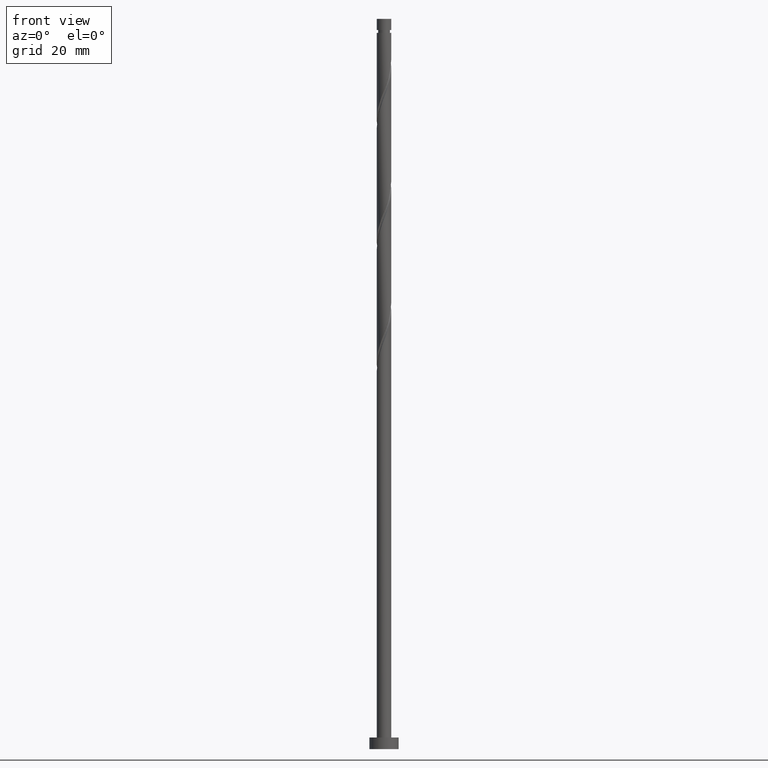
[diagram: clean part render]
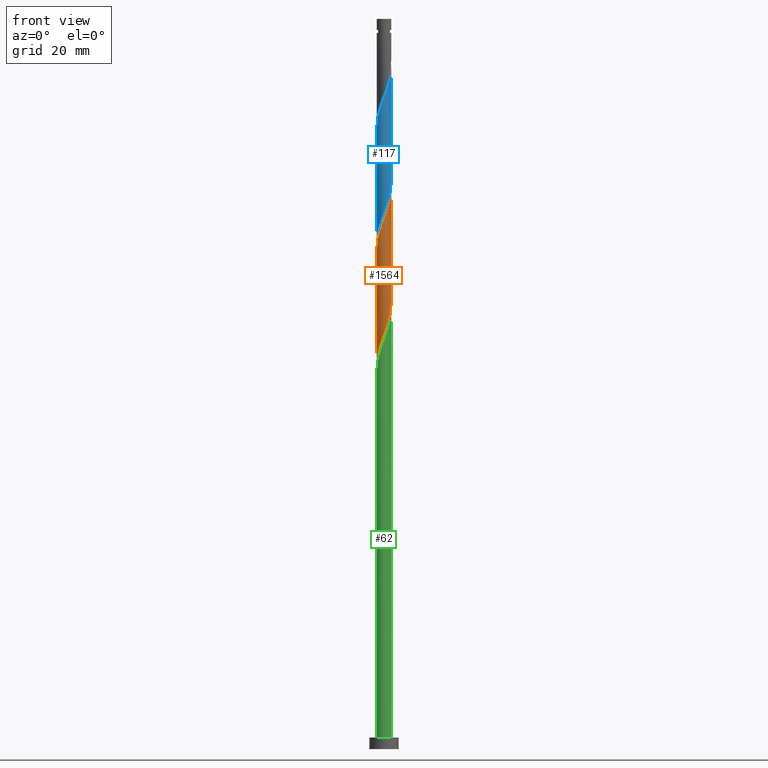
[diagram: same view with three faces highlighted in distinct colors, each labeled with its STEP entity id]
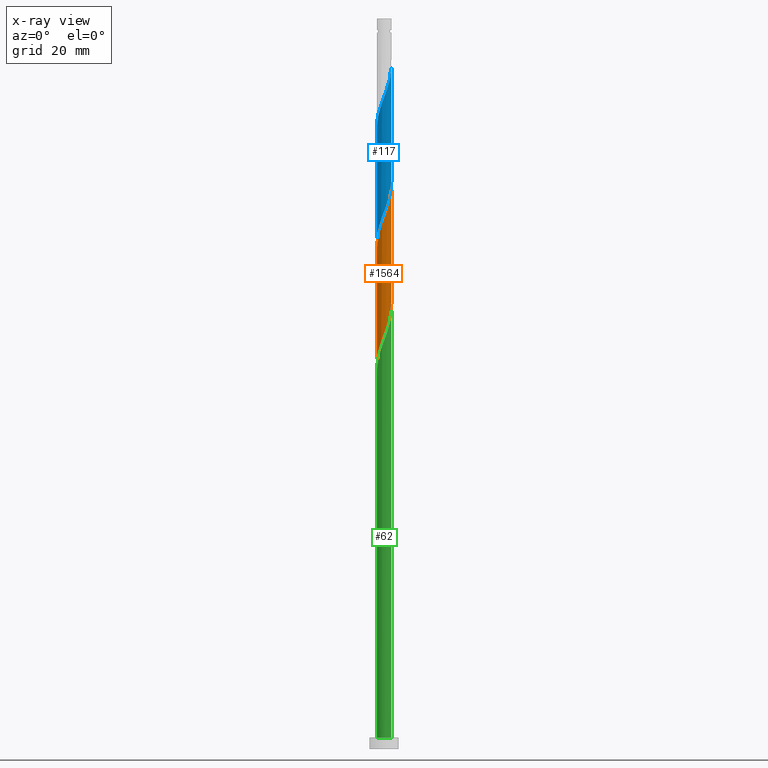
[diagram: x-ray of the same camera — body ghosted, the three highlighted faces saturated]
A machine part, front view with three faces highlighted in distinct colors.
The next image is the same camera in x-ray (body ghosted, the three faces saturated) — at least one of them is partly hidden behind the body in this view.
Their STEP definitions:

[orange] entity #1564 — the highlighted cylindrical surface (edge-blend (fillet) strip) has radius 1.25 mm, axis along (-0, -0, -1).
#21 = CARTESIAN_POINT ( 'NONE',  ( 0.9907520833843855845, -0.7874684803904423713, 74.16514045051420112 ) ) ;
#24 = CARTESIAN_POINT ( 'NONE',  ( -0.9907520833843873609, -0.7874684803904430375, 87.70680711718090095 ) ) ;
#32 = CARTESIAN_POINT ( 'NONE',  ( -0.6151181395323273016, -1.088177225647683377, 69.47764045051421533 ) ) ;
#34 = AXIS2_PLACEMENT_3D ( 'NONE', #792, #200, #926 ) ;
#88 = CARTESIAN_POINT ( 'NONE',  ( -1.055086260630532236, -0.6989200819604576287, 67.91514045051422954 ) ) ;
#119 = EDGE_CURVE ( 'NONE', #567, #767, #739, .T. ) ;
#140 = CARTESIAN_POINT ( 'NONE',  ( -1.250000000000001776, 2.084041286865579920E-15, 85.47950467571061495 ) ) ;
#147 = CARTESIAN_POINT ( 'NONE',  ( 1.088177225647683377, -0.6151181395323273016, 74.68597378384757235 ) ) ;
#161 = CARTESIAN_POINT ( 'NONE',  ( -1.225000000000001199, -0.2487468592766554076, 86.14430711718087252 ) ) ;
#165 = CARTESIAN_POINT ( 'NONE',  ( 1.224999999999999867, -0.2487468592766555187, 75.72764045051420112 ) ) ;
#188 = EDGE_CURVE ( 'NONE', #767, #471, #465, .T. ) ;
#200 = DIRECTION ( 'NONE',  ( -0.000000000000000000, -0.000000000000000000, -1.000000000000000000 ) ) ;
#219 = CARTESIAN_POINT ( 'NONE',  ( 1.250000000000000222, 1.619255100586214670E-15, 76.39244289198450133 ) ) ;
#243 = CARTESIAN_POINT ( 'NONE',  ( 0.7874684803904429264, -0.9907520833843873609, 92.91514045051424375 ) ) ;
#262 = CARTESIAN_POINT ( 'NONE',  ( -1.250000000000001554, -0.1256297269074015677, 85.81380925111847091 ) ) ;
#269 = CARTESIAN_POINT ( 'NONE',  ( 1.185602367910980837, -0.4427677986742125094, 75.20680711718088673 ) ) ;
#272 = VERTEX_POINT ( 'NONE', #703 ) ;
#275 = CARTESIAN_POINT ( 'NONE',  ( 1.250000000000001998, -0.07121717180804063019, 95.70666025316999992 ) ) ;
#327 = CYLINDRICAL_SURFACE ( 'NONE', #34, 1.250000000000000000 ) ;
#358 = CARTESIAN_POINT ( 'NONE',  ( -1.250000000000000000, 0.000000000000000000, 125.0000000000000000 ) ) ;
#366 = CARTESIAN_POINT ( 'NONE',  ( -1.088177225647684931, -0.6151181395323278567, 87.18597378384755814 ) ) ;
#371 = CARTESIAN_POINT ( 'NONE',  ( -1.249999999999999778, -0.07121717180804702785, 66.16528731452511636 ) ) ;
#401 = CARTESIAN_POINT ( 'NONE',  ( 0.1419734966862938597, -1.241911239275443446, 71.56097378384755814 ) ) ;
#406 = CARTESIAN_POINT ( 'NONE',  ( 1.219424846461868661, -0.3386729132516872465, 94.99847378384754393 ) ) ;
#412 = CARTESIAN_POINT ( 'NONE',  ( 0.5187964976060718270, -1.137255553546199893, 72.60264045051418691 ) ) ;
#461 = ORIENTED_EDGE ( 'NONE', *, *, #1146, .F. ) ;
#465 =( BOUNDED_CURVE ( )  B_SPLINE_CURVE ( 2, ( #519, #1346, #165, #269, #147, #21, #992, #1481, #412, #643, #401, #870, #1356, #1118, #32, #1494, #1127, #88, #578, #1068, #1431, #371, #836 ),
 .UNSPECIFIED., .F., .T. ) 
 B_SPLINE_CURVE_WITH_KNOTS ( ( 3, 2, 2, 2, 2, 2, 2, 2, 2, 2, 2, 3 ),
 ( 0.8045322023138550271, 0.8125000000000000000, 0.8249999999999999556, 0.8375000000000000222, 0.8499999999999999778, 0.8625000000000000444, 0.8750000000000000000, 0.8874999999999999556, 0.9000000000000000222, 0.9124999999999999778, 0.9250000000000000444, 0.9295322023138548051 ),
 .UNSPECIFIED. ) 
 CURVE ( )  GEOMETRIC_REPRESENTATION_ITEM ( )  RATIONAL_B_SPLINE_CURVE ( ( 0.9039174447099418419, 0.9019565955404710289, 0.9090909090909196077, 0.8978984914501357828, 0.9090909090909196077, 0.8978984914501357828, 0.9090909090909196077, 0.8978984914501357828, 0.9090909090909196077, 0.8978984914501357828, 0.9090909090909196077, 0.8978984914501357828, 0.9090909090909196077, 0.8978984914501357828, 0.9090909090909196077, 0.8978984914501357828, 0.9090909090909196077, 0.8978984914501357828, 0.9090909090909196077, 0.8978984914501357828, 0.9090909090909196077, 0.9050328050005844727, 0.9039174447099421750 ) ) 
 REPRESENTATION_ITEM ( '' )  );
#471 = VERTEX_POINT ( 'NONE', #874 ) ;
#519 = CARTESIAN_POINT ( 'NONE',  ( 1.250000000000000222, 1.619255100586214670E-15, 76.39244289198450133 ) ) ;
#523 = CARTESIAN_POINT ( 'NONE',  ( 0.05472591987909804223, -1.264397632089020673, 90.83180711718090095 ) ) ;
#567 = VERTEX_POINT ( 'NONE', #1299 ) ;
#578 = CARTESIAN_POINT ( 'NONE',  ( -1.137255553546199893, -0.5187964976060718270, 67.39430711718088673 ) ) ;
#595 = DIRECTION ( 'NONE',  ( -0.000000000000000000, -0.000000000000000000, -1.000000000000000000 ) ) ;
#628 = CARTESIAN_POINT ( 'NONE',  ( 1.055086260630533568, -0.6989200819604589610, 93.95680711718090095 ) ) ;
#643 = CARTESIAN_POINT ( 'NONE',  ( 0.3386729132516862473, -1.219424846461867107, 72.08180711718090095 ) ) ;
#703 = CARTESIAN_POINT ( 'NONE',  ( -1.250000000000001776, 2.084041286865579525E-15, 85.47950467571061495 ) ) ;
#722 = CARTESIAN_POINT ( 'NONE',  ( -0.8448360826724227168, -0.9212773705104880806, 88.22764045051421533 ) ) ;
#723 = DIRECTION ( 'NONE',  ( -0.000000000000000000, -0.000000000000000000, -1.000000000000000000 ) ) ;
#732 = CARTESIAN_POINT ( 'NONE',  ( -0.3386729132516869689, -1.219424846461868661, 89.79014045051427217 ) ) ;
#739 = LINE ( 'NONE', #924, #840 ) ;
#747 = EDGE_CURVE ( 'NONE', #272, #471, #1469, .T. ) ;
#767 = VERTEX_POINT ( 'NONE', #219 ) ;
#792 = CARTESIAN_POINT ( 'NONE',  ( 0.000000000000000000, 0.000000000000000000, 125.0000000000000000 ) ) ;
#831 = CARTESIAN_POINT ( 'NONE',  ( 1.137255553546200781, -0.5187964976060727151, 94.47764045051420112 ) ) ;
#836 = CARTESIAN_POINT ( 'NONE',  ( -1.250000000000000888, -8.755972025392124411E-15, 65.97577622531785835 ) ) ;
#838 = CARTESIAN_POINT ( 'NONE',  ( -0.5187964976060727151, -1.137255553546200781, 89.26930711718091516 ) ) ;
#840 = VECTOR ( 'NONE', #595, 1000.000000000000000 ) ;
#870 = CARTESIAN_POINT ( 'NONE',  ( -0.05472591987909851408, -1.264397632089019563, 71.04014045051420112 ) ) ;
#874 = CARTESIAN_POINT ( 'NONE',  ( -1.250000000000000666, -8.755972025392122833E-15, 65.97577622531785835 ) ) ;
#901 = ORIENTED_EDGE ( 'NONE', *, *, #188, .F. ) ;
#919 = FACE_OUTER_BOUND ( 'NONE', #1336, .T. ) ;
#924 = CARTESIAN_POINT ( 'NONE',  ( 1.250000000000000000, 1.530808498934191571E-16, 125.0000000000000000 ) ) ;
#926 = DIRECTION ( 'NONE',  ( -1.000000000000000000, 0.000000000000000000, 0.000000000000000000 ) ) ;
#992 = CARTESIAN_POINT ( 'NONE',  ( 0.8448360826724214956, -0.9212773705104876365, 73.64430711718091516 ) ) ;
#997 = CARTESIAN_POINT ( 'NONE',  ( 0.2487468592766552966, -1.225000000000001199, 91.35264045051421533 ) ) ;
#1068 = CARTESIAN_POINT ( 'NONE',  ( -1.219424846461867107, -0.3386729132516863583, 66.87347378384755814 ) ) ;
#1104 = CARTESIAN_POINT ( 'NONE',  ( -0.1419734966862944425, -1.241911239275444556, 90.31097378384754393 ) ) ;
#1118 = CARTESIAN_POINT ( 'NONE',  ( -0.4427677986742124538, -1.185602367910980837, 69.99847378384754393 ) ) ;
#1127 = CARTESIAN_POINT ( 'NONE',  ( -0.9212773705104876365, -0.8448360826724214956, 68.43597378384754393 ) ) ;
#1146 = EDGE_CURVE ( 'NONE', #272, #567, #1159, .T. ) ;
#1159 =( BOUNDED_CURVE ( )  B_SPLINE_CURVE ( 2, ( #140, #262, #161, #1451, #366, #24, #722, #1351, #838, #732, #1104, #523, #997, #1340, #1325, #243, #1488, #628, #831, #406, #1226, #275, #1333 ),
 .UNSPECIFIED., .F., .T. ) 
 B_SPLINE_CURVE_WITH_KNOTS ( ( 3, 2, 2, 2, 2, 2, 2, 2, 2, 2, 2, 3 ),
 ( 0.3045322023138551937, 0.3125000000000000000, 0.3249999999999999556, 0.3375000000000000222, 0.3499999999999999778, 0.3625000000000000444, 0.3750000000000000000, 0.3874999999999999556, 0.4000000000000000222, 0.4124999999999999778, 0.4250000000000000444, 0.4295322023138552492 ),
 .UNSPECIFIED. ) 
 CURVE ( )  GEOMETRIC_REPRESENTATION_ITEM ( )  RATIONAL_B_SPLINE_CURVE ( ( 0.9039174447099469489, 0.9019565955404761359, 0.9090909090909247148, 0.8978984914501405568, 0.9090909090909247148, 0.8978984914501405568, 0.9090909090909247148, 0.8978984914501405568, 0.9090909090909247148, 0.8978984914501405568, 0.9090909090909247148, 0.8978984914501405568, 0.9090909090909247148, 0.8978984914501405568, 0.9090909090909247148, 0.8978984914501405568, 0.9090909090909247148, 0.8978984914501405568, 0.9090909090909247148, 0.8978984914501405568, 0.9090909090909247148, 0.9050328050005889136, 0.9039174447099467269 ) ) 
 REPRESENTATION_ITEM ( '' )  );
#1226 = CARTESIAN_POINT ( 'NONE',  ( 1.241911239275444556, -0.1419734966862945258, 95.51930711718087252 ) ) ;
#1299 = CARTESIAN_POINT ( 'NONE',  ( 1.250000000000001776, 1.259420633789271218E-15, 95.89617134237728635 ) ) ;
#1325 = CARTESIAN_POINT ( 'NONE',  ( 0.6151181395323277457, -1.088177225647684931, 92.39430711718087252 ) ) ;
#1327 = ORIENTED_EDGE ( 'NONE', *, *, #119, .F. ) ;
#1333 = CARTESIAN_POINT ( 'NONE',  ( 1.250000000000001776, 1.259420633789271218E-15, 95.89617134237728635 ) ) ;
#1336 = EDGE_LOOP ( 'NONE', ( #1327, #461, #1338, #901 ) ) ;
#1338 = ORIENTED_EDGE ( 'NONE', *, *, #747, .T. ) ;
#1340 = CARTESIAN_POINT ( 'NONE',  ( 0.4427677986742125649, -1.185602367910982613, 91.87347378384754393 ) ) ;
#1346 = CARTESIAN_POINT ( 'NONE',  ( 1.250000000000000666, -0.1256297269073992640, 76.05813831657663115 ) ) ;
#1351 = CARTESIAN_POINT ( 'NONE',  ( -0.6989200819604587389, -1.055086260630533568, 88.74847378384755814 ) ) ;
#1356 = CARTESIAN_POINT ( 'NONE',  ( -0.2487468592766554631, -1.224999999999999867, 70.51930711718090095 ) ) ;
#1431 = CARTESIAN_POINT ( 'NONE',  ( -1.241911239275443446, -0.1419734966862939429, 66.35264045051422954 ) ) ;
#1451 = CARTESIAN_POINT ( 'NONE',  ( -1.185602367910982613, -0.4427677986742126759, 86.66514045051422954 ) ) ;
#1469 = LINE ( 'NONE', #358, #1529 ) ;
#1481 = CARTESIAN_POINT ( 'NONE',  ( 0.6989200819604576287, -1.055086260630532458, 73.12347378384754393 ) ) ;
#1488 = CARTESIAN_POINT ( 'NONE',  ( 0.9212773705104880806, -0.8448360826724227168, 93.43597378384752972 ) ) ;
#1494 = CARTESIAN_POINT ( 'NONE',  ( -0.7874684803904422603, -0.9907520833843855845, 68.95680711718090095 ) ) ;
#1529 = VECTOR ( 'NONE', #723, 1000.000000000000000 ) ;
#1564 = ADVANCED_FACE ( 'NONE', ( #919 ), #327, .T. ) ;

[blue] entity #117 — the highlighted cylindrical surface (edge-blend (fillet) strip) has radius 1.25 mm, axis along (-0, -0, -1).
#5 = CARTESIAN_POINT ( 'NONE',  ( 1.241911239275444556, -0.1419734966862945258, 116.3526404505142011 ) ) ;
#25 = LINE ( 'NONE', #1238, #779 ) ;
#29 = EDGE_CURVE ( 'NONE', #720, #124, #25, .T. ) ;
#38 = CARTESIAN_POINT ( 'NONE',  ( -0.8448360826724227168, -0.9212773705104880806, 109.0609737838475297 ) ) ;
#44 = EDGE_CURVE ( 'NONE', #720, #1492, #1007, .T. ) ;
#46 = CARTESIAN_POINT ( 'NONE',  ( 0.8448360826724214956, -0.9212773705104876365, 94.47764045051422954 ) ) ;
#52 = CARTESIAN_POINT ( 'NONE',  ( -1.137255553546199893, -0.5187964976060718270, 88.22764045051422954 ) ) ;
#97 = CARTESIAN_POINT ( 'NONE',  ( 1.250000000000000000, 1.530808498934191571E-16, 125.0000000000000000 ) ) ;
#117 = ADVANCED_FACE ( 'NONE', ( #729 ), #530, .T. ) ;
#122 = CARTESIAN_POINT ( 'NONE',  ( 1.137255553546200781, -0.5187964976060727151, 115.3109737838475581 ) ) ;
#124 = VERTEX_POINT ( 'NONE', #931 ) ;
#153 = DIRECTION ( 'NONE',  ( -0.000000000000000000, -0.000000000000000000, -1.000000000000000000 ) ) ;
#162 = CARTESIAN_POINT ( 'NONE',  ( -0.9907520833843873609, -0.7874684803904430375, 108.5401404505142153 ) ) ;
#195 = CARTESIAN_POINT ( 'NONE',  ( -1.055086260630532236, -0.6989200819604576287, 88.74847378384754393 ) ) ;
#217 = ORIENTED_EDGE ( 'NONE', *, *, #687, .F. ) ;
#270 = DIRECTION ( 'NONE',  ( -1.000000000000000000, 0.000000000000000000, 0.000000000000000000 ) ) ;
#292 = ORIENTED_EDGE ( 'NONE', *, *, #44, .F. ) ;
#296 = CARTESIAN_POINT ( 'NONE',  ( 0.6989200819604576287, -1.055086260630532458, 93.95680711718088673 ) ) ;
#378 = CARTESIAN_POINT ( 'NONE',  ( 1.250000000000001110, 6.222137655030327558E-16, 116.7295046757106149 ) ) ;
#421 = CARTESIAN_POINT ( 'NONE',  ( 0.9212773705104880806, -0.8448360826724227168, 114.2693071171808583 ) ) ;
#423 = CARTESIAN_POINT ( 'NONE',  ( -0.6151181395323273016, -1.088177225647683377, 90.31097378384754393 ) ) ;
#436 = CARTESIAN_POINT ( 'NONE',  ( -0.05472591987909851408, -1.264397632089019563, 91.87347378384752972 ) ) ;
#524 = CARTESIAN_POINT ( 'NONE',  ( -1.185602367910982613, -0.4427677986742126759, 107.4984737838475581 ) ) ;
#530 = CYLINDRICAL_SURFACE ( 'NONE', #1133, 1.250000000000000000 ) ;
#545 = CARTESIAN_POINT ( 'NONE',  ( 0.5187964976060718270, -1.137255553546199893, 93.43597378384755814 ) ) ;
#602 = CARTESIAN_POINT ( 'NONE',  ( -0.3386729132516869689, -1.219424846461868661, 110.6234737838475581 ) ) ;
#608 =( BOUNDED_CURVE ( )  B_SPLINE_CURVE ( 2, ( #959, #969, #1461, #1522, #1279, #654, #46, #296, #545, #1138, #1029, #436, #1021, #1505, #423, #763, #905, #195, #52, #1511, #1269, #892, #665 ),
 .UNSPECIFIED., .F., .T. ) 
 B_SPLINE_CURVE_WITH_KNOTS ( ( 3, 2, 2, 2, 2, 2, 2, 2, 2, 2, 2, 3 ),
 ( 0.5545322023138550271, 0.5625000000000000000, 0.5749999999999999556, 0.5875000000000000222, 0.5999999999999999778, 0.6125000000000000444, 0.6250000000000000000, 0.6374999999999999556, 0.6500000000000000222, 0.6624999999999999778, 0.6750000000000000444, 0.6795322023138549161 ),
 .UNSPECIFIED. ) 
 CURVE ( )  GEOMETRIC_REPRESENTATION_ITEM ( )  RATIONAL_B_SPLINE_CURVE ( ( 0.9039174447099418419, 0.9019565955404710289, 0.9090909090909196077, 0.8978984914501357828, 0.9090909090909196077, 0.8978984914501357828, 0.9090909090909196077, 0.8978984914501357828, 0.9090909090909196077, 0.8978984914501357828, 0.9090909090909196077, 0.8978984914501357828, 0.9090909090909196077, 0.8978984914501357828, 0.9090909090909196077, 0.8978984914501357828, 0.9090909090909196077, 0.8978984914501357828, 0.9090909090909196077, 0.8978984914501357828, 0.9090909090909196077, 0.9050328050005842506, 0.9039174447099419529 ) ) 
 REPRESENTATION_ITEM ( '' )  );
#654 = CARTESIAN_POINT ( 'NONE',  ( 0.9907520833843855845, -0.7874684803904423713, 94.99847378384755814 ) ) ;
#659 = CARTESIAN_POINT ( 'NONE',  ( 1.250000000000000222, 1.619255100586214670E-15, 97.22577622531781572 ) ) ;
#665 = CARTESIAN_POINT ( 'NONE',  ( -1.250000000000000666, -5.277572179688403776E-15, 86.80910955865117273 ) ) ;
#687 = EDGE_CURVE ( 'NONE', #1492, #1296, #1452, .T. ) ;
#718 = CARTESIAN_POINT ( 'NONE',  ( 0.6151181395323277457, -1.088177225647684931, 113.2276404505142011 ) ) ;
#720 = VERTEX_POINT ( 'NONE', #822 ) ;
#729 = FACE_OUTER_BOUND ( 'NONE', #941, .T. ) ;
#751 = CARTESIAN_POINT ( 'NONE',  ( -1.225000000000001199, -0.2487468592766554076, 106.9776404505142011 ) ) ;
#763 = CARTESIAN_POINT ( 'NONE',  ( -0.7874684803904422603, -0.9907520833843855845, 89.79014045051424375 ) ) ;
#779 = VECTOR ( 'NONE', #153, 1000.000000000000000 ) ;
#817 = CARTESIAN_POINT ( 'NONE',  ( 1.250000000000001332, 6.222137655030326572E-16, 116.7295046757106292 ) ) ;
#822 = CARTESIAN_POINT ( 'NONE',  ( -1.250000000000001776, 9.745516809083643814E-16, 106.3128380090439293 ) ) ;
#835 = ORIENTED_EDGE ( 'NONE', *, *, #1242, .F. ) ;
#858 = CARTESIAN_POINT ( 'NONE',  ( 0.000000000000000000, 0.000000000000000000, 125.0000000000000000 ) ) ;
#877 = CARTESIAN_POINT ( 'NONE',  ( -1.250000000000002220, -0.1256297269073989864, 106.6471425844517711 ) ) ;
#892 = CARTESIAN_POINT ( 'NONE',  ( -1.249999999999999778, -0.07121717180804529312, 86.99862064785843074 ) ) ;
#905 = CARTESIAN_POINT ( 'NONE',  ( -0.9212773705104876365, -0.8448360826724214956, 89.26930711718090095 ) ) ;
#931 = CARTESIAN_POINT ( 'NONE',  ( -1.250000000000000666, -5.277572179688403776E-15, 86.80910955865117273 ) ) ;
#941 = EDGE_LOOP ( 'NONE', ( #217, #292, #1223, #835 ) ) ;
#951 = DIRECTION ( 'NONE',  ( -0.000000000000000000, -0.000000000000000000, -1.000000000000000000 ) ) ;
#959 = CARTESIAN_POINT ( 'NONE',  ( 1.250000000000000222, 1.619255100586214670E-15, 97.22577622531781572 ) ) ;
#969 = CARTESIAN_POINT ( 'NONE',  ( 1.250000000000000666, -0.1256297269073992640, 96.89147164990997396 ) ) ;
#972 = CARTESIAN_POINT ( 'NONE',  ( 1.250000000000001998, -0.07121717180803886771, 116.5399935865033569 ) ) ;
#983 = CARTESIAN_POINT ( 'NONE',  ( 0.4427677986742125649, -1.185602367910982613, 112.7068071171809152 ) ) ;
#1007 =( BOUNDED_CURVE ( )  B_SPLINE_CURVE ( 2, ( #1475, #877, #751, #524, #1361, #162, #38, #1012, #1375, #602, #1092, #1503, #1246, #983, #718, #1111, #421, #1208, #122, #1483, #5, #972, #378 ),
 .UNSPECIFIED., .F., .T. ) 
 B_SPLINE_CURVE_WITH_KNOTS ( ( 3, 2, 2, 2, 2, 2, 2, 2, 2, 2, 2, 3 ),
 ( 0.5545322023138550271, 0.5625000000000000000, 0.5749999999999999556, 0.5875000000000000222, 0.5999999999999999778, 0.6125000000000000444, 0.6250000000000000000, 0.6374999999999999556, 0.6500000000000000222, 0.6624999999999999778, 0.6750000000000000444, 0.6795322023138553602 ),
 .UNSPECIFIED. ) 
 CURVE ( )  GEOMETRIC_REPRESENTATION_ITEM ( )  RATIONAL_B_SPLINE_CURVE ( ( 0.9039174447099469489, 0.9019565955404760249, 0.9090909090909247148, 0.8978984914501405568, 0.9090909090909247148, 0.8978984914501405568, 0.9090909090909247148, 0.8978984914501405568, 0.9090909090909247148, 0.8978984914501405568, 0.9090909090909247148, 0.8978984914501405568, 0.9090909090909247148, 0.8978984914501405568, 0.9090909090909247148, 0.8978984914501405568, 0.9090909090909247148, 0.8978984914501405568, 0.9090909090909247148, 0.8978984914501405568, 0.9090909090909247148, 0.9050328050005889136, 0.9039174447099467269 ) ) 
 REPRESENTATION_ITEM ( '' )  );
#1012 = CARTESIAN_POINT ( 'NONE',  ( -0.6989200819604587389, -1.055086260630533568, 109.5818071171808867 ) ) ;
#1021 = CARTESIAN_POINT ( 'NONE',  ( -0.2487468592766554631, -1.224999999999999867, 91.35264045051421533 ) ) ;
#1029 = CARTESIAN_POINT ( 'NONE',  ( 0.1419734966862938597, -1.241911239275443446, 92.39430711718087252 ) ) ;
#1092 = CARTESIAN_POINT ( 'NONE',  ( -0.1419734966862944425, -1.241911239275444556, 111.1443071171808725 ) ) ;
#1111 = CARTESIAN_POINT ( 'NONE',  ( 0.7874684803904429264, -0.9907520833843873609, 113.7484737838475866 ) ) ;
#1133 = AXIS2_PLACEMENT_3D ( 'NONE', #858, #1221, #270 ) ;
#1138 = CARTESIAN_POINT ( 'NONE',  ( 0.3386729132516862473, -1.219424846461867107, 92.91514045051421533 ) ) ;
#1169 = VECTOR ( 'NONE', #951, 1000.000000000000000 ) ;
#1208 = CARTESIAN_POINT ( 'NONE',  ( 1.055086260630533568, -0.6989200819604589610, 114.7901404505142153 ) ) ;
#1221 = DIRECTION ( 'NONE',  ( -0.000000000000000000, -0.000000000000000000, -1.000000000000000000 ) ) ;
#1223 = ORIENTED_EDGE ( 'NONE', *, *, #29, .T. ) ;
#1238 = CARTESIAN_POINT ( 'NONE',  ( -1.250000000000000000, 0.000000000000000000, 125.0000000000000000 ) ) ;
#1242 = EDGE_CURVE ( 'NONE', #1296, #124, #608, .T. ) ;
#1246 = CARTESIAN_POINT ( 'NONE',  ( 0.2487468592766552966, -1.225000000000001199, 112.1859737838475439 ) ) ;
#1269 = CARTESIAN_POINT ( 'NONE',  ( -1.241911239275443446, -0.1419734966862939429, 87.18597378384754393 ) ) ;
#1279 = CARTESIAN_POINT ( 'NONE',  ( 1.088177225647683377, -0.6151181395323273016, 95.51930711718088673 ) ) ;
#1296 = VERTEX_POINT ( 'NONE', #659 ) ;
#1361 = CARTESIAN_POINT ( 'NONE',  ( -1.088177225647684931, -0.6151181395323278567, 108.0193071171808725 ) ) ;
#1375 = CARTESIAN_POINT ( 'NONE',  ( -0.5187964976060727151, -1.137255553546200781, 110.1026404505141869 ) ) ;
#1452 = LINE ( 'NONE', #97, #1169 ) ;
#1461 = CARTESIAN_POINT ( 'NONE',  ( 1.224999999999999867, -0.2487468592766555187, 96.56097378384754393 ) ) ;
#1475 = CARTESIAN_POINT ( 'NONE',  ( -1.250000000000001776, 9.745516809083643814E-16, 106.3128380090439293 ) ) ;
#1483 = CARTESIAN_POINT ( 'NONE',  ( 1.219424846461868661, -0.3386729132516872465, 115.8318071171809009 ) ) ;
#1492 = VERTEX_POINT ( 'NONE', #817 ) ;
#1503 = CARTESIAN_POINT ( 'NONE',  ( 0.05472591987909804223, -1.264397632089020673, 111.6651404505142438 ) ) ;
#1505 = CARTESIAN_POINT ( 'NONE',  ( -0.4427677986742124538, -1.185602367910980837, 90.83180711718088673 ) ) ;
#1511 = CARTESIAN_POINT ( 'NONE',  ( -1.219424846461867107, -0.3386729132516863583, 87.70680711718088673 ) ) ;
#1522 = CARTESIAN_POINT ( 'NONE',  ( 1.185602367910980837, -0.4427677986742125094, 96.04014045051422954 ) ) ;

[green] entity #62 — the highlighted cylindrical surface (edge-blend (fillet) strip) has radius 1.25 mm, axis along (-0, -0, -1).
#3 = VECTOR ( 'NONE', #174, 1000.000000000000000 ) ;
#22 = CYLINDRICAL_SURFACE ( 'NONE', #98, 1.250000000000000000 ) ;
#37 = CARTESIAN_POINT ( 'NONE',  ( -1.250000000000000000, 0.000000000000000000, 125.0000000000000000 ) ) ;
#62 = ADVANCED_FACE ( 'NONE', ( #390 ), #22, .T. ) ;
#71 = CARTESIAN_POINT ( 'NONE',  ( 1.250000000000001776, 1.259420633789271218E-15, 75.06283800904398618 ) ) ;
#98 = AXIS2_PLACEMENT_3D ( 'NONE', #281, #634, #1119 ) ;
#132 = VECTOR ( 'NONE', #383, 1000.000000000000000 ) ;
#169 = CARTESIAN_POINT ( 'NONE',  ( -0.9907520833843873609, -0.7874684803904430375, 66.87347378384755814 ) ) ;
#174 = DIRECTION ( 'NONE',  ( -0.000000000000000000, -0.000000000000000000, -1.000000000000000000 ) ) ;
#179 = ORIENTED_EDGE ( 'NONE', *, *, #883, .F. ) ;
#223 = CARTESIAN_POINT ( 'NONE',  ( 0.4427677986742125649, -1.185602367910982613, 71.04014045051425796 ) ) ;
#281 = CARTESIAN_POINT ( 'NONE',  ( 0.000000000000000000, 0.000000000000000000, 125.0000000000000000 ) ) ;
#289 = DIRECTION ( 'NONE',  ( 1.000000000000000000, 0.000000000000000000, 0.000000000000000000 ) ) ;
#315 = CARTESIAN_POINT ( 'NONE',  ( -1.250000000000001776, -1.188953050708204892E-14, 64.64617134237732898 ) ) ;
#320 = CARTESIAN_POINT ( 'NONE',  ( -1.250000000000001776, -1.188953050708204892E-14, 64.64617134237732898 ) ) ;
#341 = AXIS2_PLACEMENT_3D ( 'NONE', #1392, #909, #289 ) ;
#383 = DIRECTION ( 'NONE',  ( -0.000000000000000000, -0.000000000000000000, -1.000000000000000000 ) ) ;
#390 = FACE_OUTER_BOUND ( 'NONE', #1567, .T. ) ;
#417 = CARTESIAN_POINT ( 'NONE',  ( -1.225000000000001199, -0.2487468592766554076, 65.31097378384754393 ) ) ;
#446 = CARTESIAN_POINT ( 'NONE',  ( 0.9212773705104880806, -0.8448360826724227168, 72.60264045051420112 ) ) ;
#457 = CARTESIAN_POINT ( 'NONE',  ( 0.7874684803904429264, -0.9907520833843873609, 72.08180711718090095 ) ) ;
#540 = CARTESIAN_POINT ( 'NONE',  ( -0.5187964976060727151, -1.137255553546200781, 68.43597378384755814 ) ) ;
#583 = CARTESIAN_POINT ( 'NONE',  ( 0.05472591987909804223, -1.264397632089020673, 69.99847378384752972 ) ) ;
#634 = DIRECTION ( 'NONE',  ( -0.000000000000000000, -0.000000000000000000, -1.000000000000000000 ) ) ;
#637 = LINE ( 'NONE', #37, #132 ) ;
#646 = CARTESIAN_POINT ( 'NONE',  ( -0.8448360826724227168, -0.9212773705104880806, 67.39430711718087252 ) ) ;
#680 = CARTESIAN_POINT ( 'NONE',  ( -0.3386729132516869689, -1.219424846461868661, 68.95680711718088673 ) ) ;
#696 = CARTESIAN_POINT ( 'NONE',  ( 1.137255553546200781, -0.5187964976060727151, 73.64430711718090095 ) ) ;
#754 = ORIENTED_EDGE ( 'NONE', *, *, #1335, .T. ) ;
#761 = LINE ( 'NONE', #1260, #3 ) ;
#780 = CIRCLE ( 'NONE', #341, 1.250000000000000000 ) ;
#800 = CARTESIAN_POINT ( 'NONE',  ( -0.1419734966862944425, -1.241911239275444556, 69.47764045051420112 ) ) ;
#883 = EDGE_CURVE ( 'NONE', #1047, #888, #761, .T. ) ;
#884 = CARTESIAN_POINT ( 'NONE',  ( -1.185602367910982613, -0.4427677986742126759, 65.83180711718091516 ) ) ;
#888 = VERTEX_POINT ( 'NONE', #1108 ) ;
#909 = DIRECTION ( 'NONE',  ( 0.000000000000000000, 0.000000000000000000, 1.000000000000000000 ) ) ;
#914 = CARTESIAN_POINT ( 'NONE',  ( 1.055086260630533568, -0.6989200819604589610, 73.12347378384755814 ) ) ;
#1047 = VERTEX_POINT ( 'NONE', #71 ) ;
#1054 = CARTESIAN_POINT ( 'NONE',  ( 0.2487468592766552966, -1.225000000000001199, 70.51930711718087252 ) ) ;
#1098 = CARTESIAN_POINT ( 'NONE',  ( -1.250000000000000000, 0.000000000000000000, 2.000000000000000000 ) ) ;
#1108 = CARTESIAN_POINT ( 'NONE',  ( 1.250000000000000000, 1.530808498934191571E-16, 2.000000000000000000 ) ) ;
#1113 = ORIENTED_EDGE ( 'NONE', *, *, #1213, .T. ) ;
#1119 = DIRECTION ( 'NONE',  ( -1.000000000000000000, 0.000000000000000000, 0.000000000000000000 ) ) ;
#1129 = CARTESIAN_POINT ( 'NONE',  ( -0.6989200819604587389, -1.055086260630533568, 67.91514045051424375 ) ) ;
#1172 = CARTESIAN_POINT ( 'NONE',  ( 0.6151181395323277457, -1.088177225647684931, 71.56097378384752972 ) ) ;
#1186 = CARTESIAN_POINT ( 'NONE',  ( 1.250000000000002220, -0.07121717180804018610, 74.87332691983671396 ) ) ;
#1196 = VERTEX_POINT ( 'NONE', #1098 ) ;
#1213 = EDGE_CURVE ( 'NONE', #1536, #1196, #637, .T. ) ;
#1260 = CARTESIAN_POINT ( 'NONE',  ( 1.250000000000000000, 1.530808498934191571E-16, 125.0000000000000000 ) ) ;
#1303 = CARTESIAN_POINT ( 'NONE',  ( 1.219424846461868661, -0.3386729132516872465, 74.16514045051420112 ) ) ;
#1335 = EDGE_CURVE ( 'NONE', #1196, #888, #780, .T. ) ;
#1369 = CARTESIAN_POINT ( 'NONE',  ( -1.088177225647684931, -0.6151181395323278567, 66.35264045051420112 ) ) ;
#1392 = CARTESIAN_POINT ( 'NONE',  ( 0.000000000000000000, 0.000000000000000000, 2.000000000000000000 ) ) ;
#1411 = CARTESIAN_POINT ( 'NONE',  ( 1.250000000000001776, 1.259420633789271218E-15, 75.06283800904398618 ) ) ;
#1422 =( BOUNDED_CURVE ( )  B_SPLINE_CURVE ( 2, ( #315, #1499, #417, #884, #1369, #169, #646, #1129, #540, #680, #800, #583, #1054, #223, #1172, #457, #446, #914, #696, #1303, #1527, #1186, #1411 ),
 .UNSPECIFIED., .F., .T. ) 
 B_SPLINE_CURVE_WITH_KNOTS ( ( 3, 2, 2, 2, 2, 2, 2, 2, 2, 2, 2, 3 ),
 ( 0.05453220231385556144, 0.06250000000000000000, 0.07499999999999995559, 0.08750000000000002220, 0.09999999999999997780, 0.1125000000000000444, 0.1250000000000000000, 0.1374999999999999556, 0.1500000000000000222, 0.1624999999999999778, 0.1750000000000000444, 0.1795322023138552769 ),
 .UNSPECIFIED. ) 
 CURVE ( )  GEOMETRIC_REPRESENTATION_ITEM ( )  RATIONAL_B_SPLINE_CURVE ( ( 0.9039174447099469489, 0.9019565955404765800, 0.9090909090909247148, 0.8978984914501405568, 0.9090909090909247148, 0.8978984914501405568, 0.9090909090909247148, 0.8978984914501405568, 0.9090909090909247148, 0.8978984914501405568, 0.9090909090909247148, 0.8978984914501405568, 0.9090909090909247148, 0.8978984914501405568, 0.9090909090909247148, 0.8978984914501405568, 0.9090909090909247148, 0.8978984914501405568, 0.9090909090909247148, 0.8978984914501405568, 0.9090909090909247148, 0.9050328050005889136, 0.9039174447099467269 ) ) 
 REPRESENTATION_ITEM ( '' )  );
#1433 = EDGE_CURVE ( 'NONE', #1536, #1047, #1422, .T. ) ;
#1499 = CARTESIAN_POINT ( 'NONE',  ( -1.250000000000000444, -0.1256297269074073131, 64.98047591778514231 ) ) ;
#1524 = ORIENTED_EDGE ( 'NONE', *, *, #1433, .F. ) ;
#1527 = CARTESIAN_POINT ( 'NONE',  ( 1.241911239275444556, -0.1419734966862945258, 74.68597378384757235 ) ) ;
#1536 = VERTEX_POINT ( 'NONE', #320 ) ;
#1567 = EDGE_LOOP ( 'NONE', ( #179, #1524, #1113, #754 ) ) ;